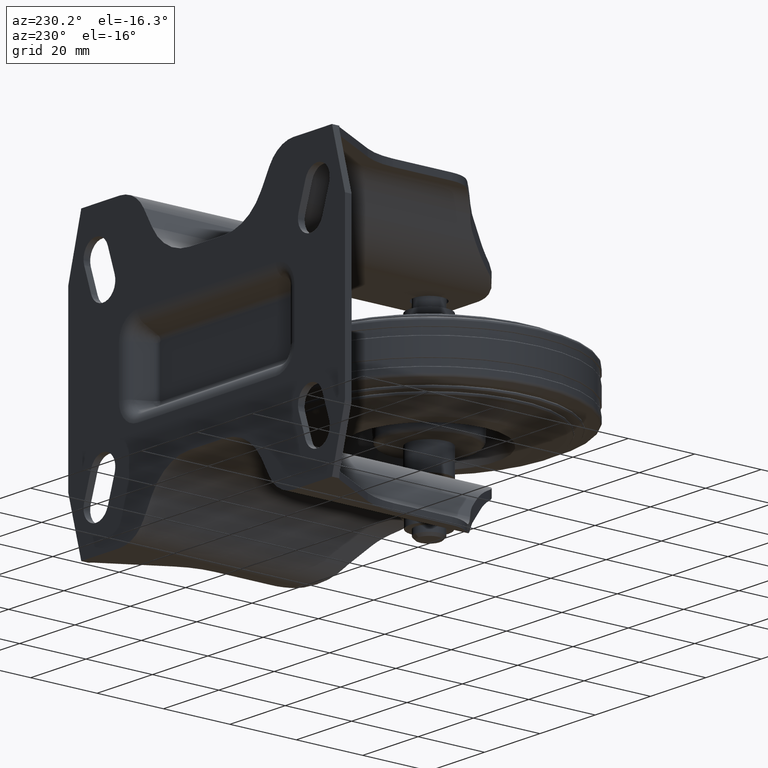
[diagram: clean part render]
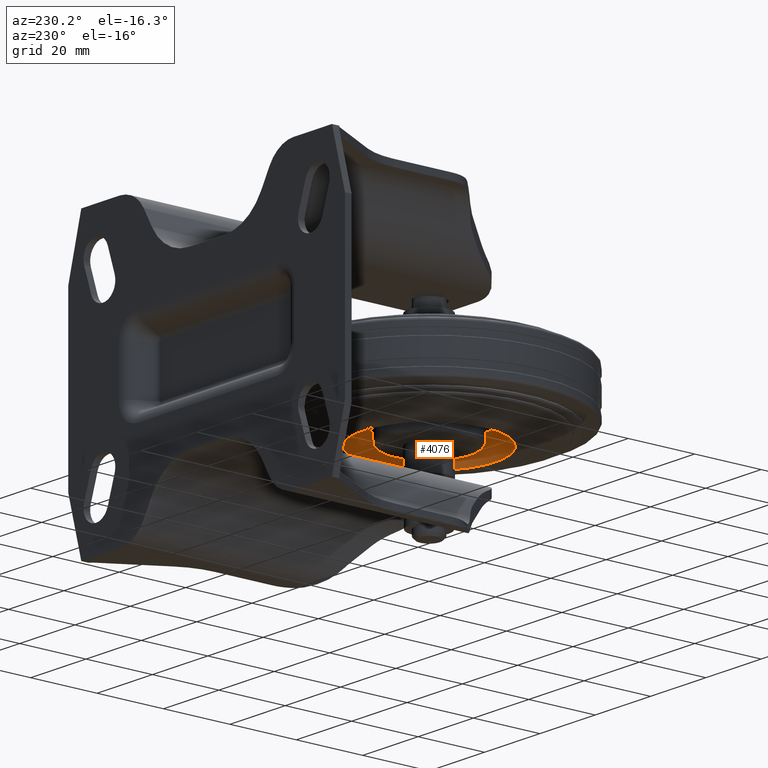
[diagram: same view with one face highlighted and labeled with its STEP entity id]
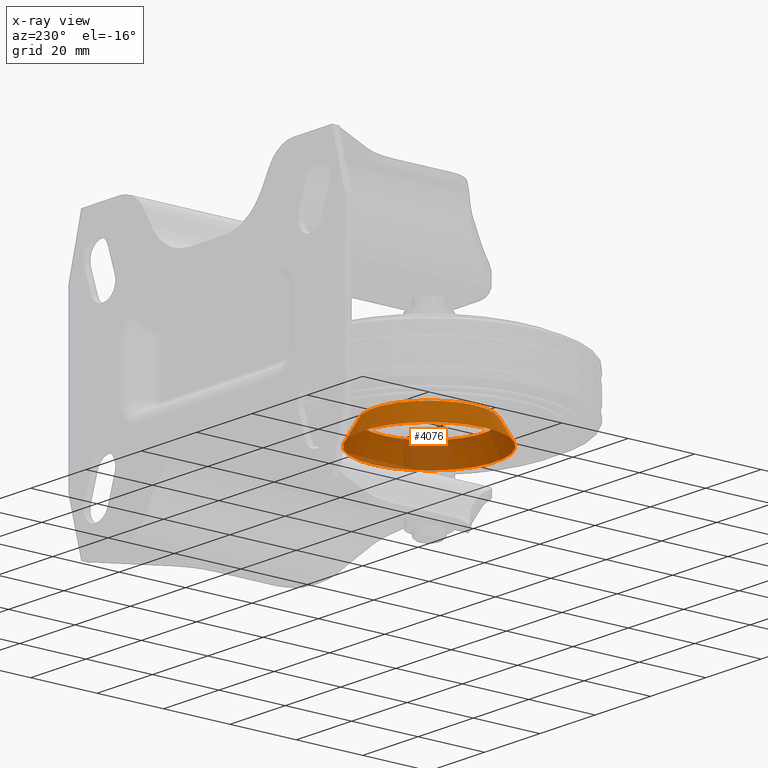
[diagram: x-ray of the same camera — body ghosted, the highlighted face saturated]
A machine part, auxiliary view. The second image highlights one B-rep face of the part: STEP entity #4076.
The next image is the same camera in x-ray: the body ghosted, the highlighted face saturated — about 27% of this face is hidden behind the body in this view.
In plain terms, the highlighted conical surface has half-angle 30 deg.
Its self-contained STEP definition (entity closure, byte-faithful):
#560=LINE('',#7382,#827);
#827=VECTOR('',#5801,16.3915608175648);
#1130=FACE_OUTER_BOUND('',#1399,.T.);
#1399=EDGE_LOOP('',(#3720,#3721,#3722,#3723));
#1600=CIRCLE('',#4631,16.3915608175648);
#1601=CIRCLE('',#4633,20.);
#2030=VERTEX_POINT('',#7377);
#2031=VERTEX_POINT('',#7381);
#2597=EDGE_CURVE('',#2030,#2030,#1600,.T.);
#2598=EDGE_CURVE('',#2030,#2031,#560,.T.);
#2599=EDGE_CURVE('',#2031,#2031,#1601,.T.);
#3720=ORIENTED_EDGE('',*,*,#2597,.F.);
#3721=ORIENTED_EDGE('',*,*,#2598,.T.);
#3722=ORIENTED_EDGE('',*,*,#2599,.T.);
#3723=ORIENTED_EDGE('',*,*,#2598,.F.);
#3856=CONICAL_SURFACE('',#4632,16.3915608175648,0.523598775598299);
#4076=ADVANCED_FACE('',(#1130),#3856,.F.);
#4631=AXIS2_PLACEMENT_3D('',#7379,#5797,#5798);
#4632=AXIS2_PLACEMENT_3D('',#7380,#5799,#5800);
#4633=AXIS2_PLACEMENT_3D('',#7383,#5802,#5803);
#5797=DIRECTION('center_axis',(6.12323399573677E-17,0.,-1.));
#5798=DIRECTION('ref_axis',(-1.,0.,-6.12323399573677E-17));
#5799=DIRECTION('center_axis',(6.12323399573677E-17,0.,-1.));
#5800=DIRECTION('ref_axis',(-1.,0.,-6.12323399573677E-17));
#5801=DIRECTION('',(0.5,-6.12323399573677E-17,-0.866025403784439));
#5802=DIRECTION('center_axis',(6.12323399573677E-17,0.,-1.));
#5803=DIRECTION('ref_axis',(-1.,0.,-6.12323399573677E-17));
#7377=CARTESIAN_POINT('',(16.3915608175648,-2.00738724882599E-15,-6.25));
#7379=CARTESIAN_POINT('Origin',(3.82702124733548E-16,0.,-6.25));
#7380=CARTESIAN_POINT('Origin',(3.82702124733548E-16,0.,-6.25));
#7381=CARTESIAN_POINT('',(20.,-2.4492935982947E-15,-12.5));
#7382=CARTESIAN_POINT('',(16.3915608175648,-2.00738724882599E-15,-6.25));
#7383=CARTESIAN_POINT('Origin',(7.65404249467096E-16,0.,-12.5));